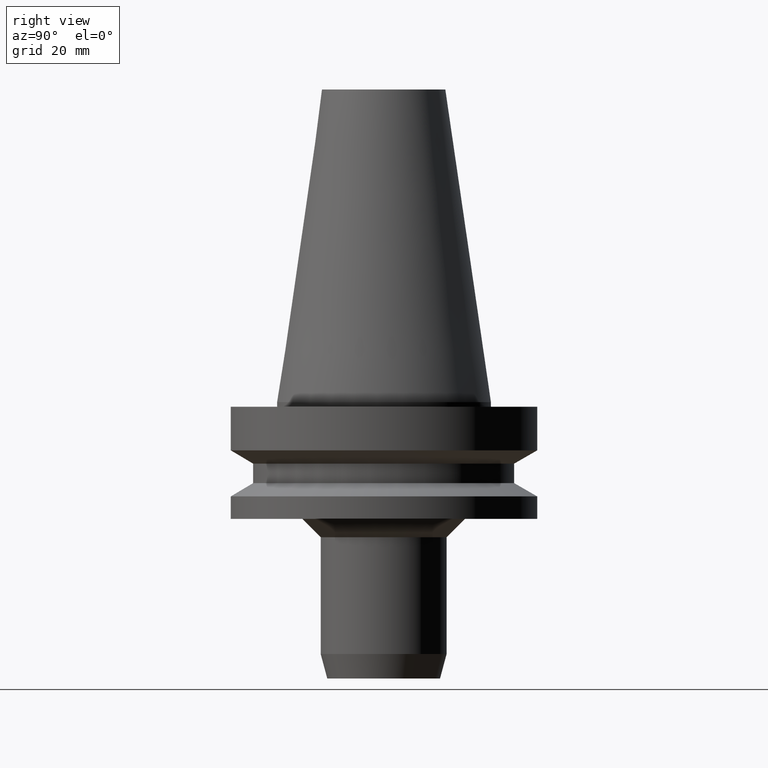
[diagram: clean part render]
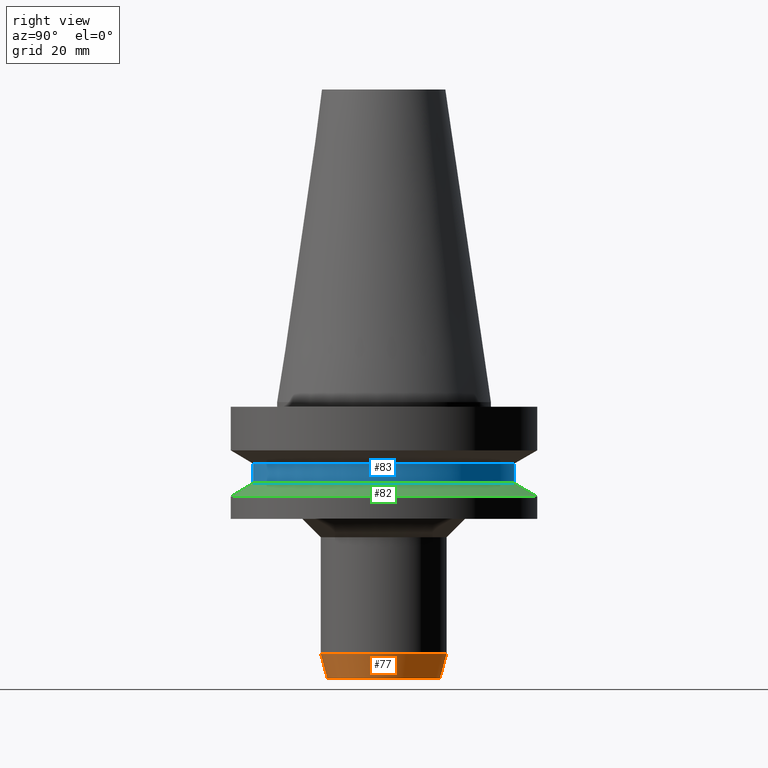
[diagram: same view with three faces highlighted in distinct colors, each labeled with its STEP entity id]
A machine part, right view with three faces highlighted in distinct colors.
Their STEP definitions:

[orange] entity #77 — the highlighted conical surface has half-angle 15 deg.
#77=ADVANCED_FACE('',(#94,#95),#96,.T.);
#94=FACE_BOUND('',#134,.T.);
#95=FACE_BOUND('',#135,.T.);
#96=CONICAL_SURFACE('',#136,19.4282032322792,0.261799387022768);
#134=EDGE_LOOP('',(#178));
#135=EDGE_LOOP('',(#179));
#136=AXIS2_PLACEMENT_3D('',#180,#181,#182);
#178=ORIENTED_EDGE('',*,*,#240,.F.);
#179=ORIENTED_EDGE('',*,*,#239,.T.);
#180=CARTESIAN_POINT('',(5.26598123603087E-015,1.05319624720617E-014,-85.9999999950557));
#181=DIRECTION('',(-6.12323399573677E-017,-1.22464679914735E-016,1.0));
#182=DIRECTION('',(-1.23259516440783E-032,1.0,1.22464679914735E-016));
#239=EDGE_CURVE('',#253,#253,#254,.T.);
#240=EDGE_CURVE('',#255,#255,#256,.T.);
#253=VERTEX_POINT('',#279);
#254=CIRCLE('',#280,18.3564064645584);
#255=VERTEX_POINT('',#281);
#256=CIRCLE('',#282,20.5);
#279=CARTESIAN_POINT('',(5.51091059616309E-015,18.3564064645584,-90.0));
#280=AXIS2_PLACEMENT_3D('',#306,#307,#308);
#281=CARTESIAN_POINT('',(5.02105187589864E-015,20.5,-81.9999999901114));
#282=AXIS2_PLACEMENT_3D('',#309,#310,#311);
#306=CARTESIAN_POINT('',(5.51091059616309E-015,1.10218211923262E-014,-90.0));
#307=DIRECTION('',(-6.12323399573677E-017,-1.22464679914735E-016,1.0));
#308=DIRECTION('',(-1.23259516440783E-032,1.0,1.22464679914735E-016));
#309=CARTESIAN_POINT('',(5.02105187589864E-015,1.00421037517973E-014,-81.9999999901114));
#310=DIRECTION('',(-6.12323399573677E-017,-1.22464679914735E-016,1.0));
#311=DIRECTION('',(-1.23259516440783E-032,1.0,1.22464679914735E-016));

[blue] entity #83 — the highlighted cylindrical surface (bore or boss wall) has radius 42.5 mm, axis along (0, 0, -1).
#83=ADVANCED_FACE('',(#112,#113),#114,.T.);
#112=FACE_BOUND('',#152,.T.);
#113=FACE_BOUND('',#153,.T.);
#114=CYLINDRICAL_SURFACE('',#154,42.5);
#152=EDGE_LOOP('',(#208));
#153=EDGE_LOOP('',(#209));
#154=AXIS2_PLACEMENT_3D('',#210,#211,#212);
#208=ORIENTED_EDGE('',*,*,#246,.F.);
#209=ORIENTED_EDGE('',*,*,#245,.T.);
#210=CARTESIAN_POINT('',(1.42059028701093E-015,2.84118057402186E-015,-23.2));
#211=DIRECTION('',(6.12323399573677E-017,1.22464679914735E-016,-1.0));
#212=DIRECTION('',(-1.23259516440783E-032,1.0,1.22464679914735E-016));
#245=EDGE_CURVE('',#265,#265,#266,.T.);
#246=EDGE_CURVE('',#267,#267,#268,.T.);
#265=VERTEX_POINT('',#291);
#266=CIRCLE('',#292,42.5);
#267=VERTEX_POINT('',#293);
#268=CIRCLE('',#294,42.5);
#291=CARTESIAN_POINT('',(1.61468902694396E-015,42.5,-26.36987298));
#292=AXIS2_PLACEMENT_3D('',#324,#325,#326);
#293=CARTESIAN_POINT('',(1.2264915470779E-015,42.5,-20.03012702));
#294=AXIS2_PLACEMENT_3D('',#327,#328,#329);
#324=CARTESIAN_POINT('',(1.61468902694396E-015,3.22937805388793E-015,-26.36987298));
#325=DIRECTION('',(-6.12323399573677E-017,-1.22464679914735E-016,1.0));
#326=DIRECTION('',(-1.23259516440783E-032,1.0,1.22464679914735E-016));
#327=CARTESIAN_POINT('',(1.2264915470779E-015,2.45298309415579E-015,-20.03012702));
#328=DIRECTION('',(-6.12323399573677E-017,-1.22464679914735E-016,1.0));
#329=DIRECTION('',(-1.23259516440783E-032,1.0,1.22464679914735E-016));

[green] entity #82 — the highlighted conical surface has half-angle 60 deg.
#82=ADVANCED_FACE('',(#109,#110),#111,.T.);
#109=FACE_BOUND('',#149,.T.);
#110=FACE_BOUND('',#150,.T.);
#111=CONICAL_SURFACE('',#151,46.25,1.04719755108882);
#149=EDGE_LOOP('',(#203));
#150=EDGE_LOOP('',(#204));
#151=AXIS2_PLACEMENT_3D('',#205,#206,#207);
#203=ORIENTED_EDGE('',*,*,#245,.F.);
#204=ORIENTED_EDGE('',*,*,#244,.T.);
#205=CARTESIAN_POINT('',(1.74726093181758E-015,3.49452186363515E-015,-28.53493649));
#206=DIRECTION('',(6.12323399573676E-017,1.22464679914735E-016,-1.0));
#207=DIRECTION('',(-1.23259516440783E-032,1.0,1.22464679914735E-016));
#244=EDGE_CURVE('',#263,#263,#264,.T.);
#245=EDGE_CURVE('',#265,#265,#266,.T.);
#263=VERTEX_POINT('',#289);
#264=CIRCLE('',#290,50.0);
#265=VERTEX_POINT('',#291);
#266=CIRCLE('',#292,42.5);
#289=CARTESIAN_POINT('',(1.87983283669119E-015,50.0,-30.7));
#290=AXIS2_PLACEMENT_3D('',#321,#322,#323);
#291=CARTESIAN_POINT('',(1.61468902694396E-015,42.5,-26.36987298));
#292=AXIS2_PLACEMENT_3D('',#324,#325,#326);
#321=CARTESIAN_POINT('',(1.87983283669119E-015,3.75966567338237E-015,-30.7));
#322=DIRECTION('',(-6.12323399573677E-017,-1.22464679914735E-016,1.0));
#323=DIRECTION('',(-1.23259516440783E-032,1.0,1.22464679914735E-016));
#324=CARTESIAN_POINT('',(1.61468902694396E-015,3.22937805388793E-015,-26.36987298));
#325=DIRECTION('',(-6.12323399573677E-017,-1.22464679914735E-016,1.0));
#326=DIRECTION('',(-1.23259516440783E-032,1.0,1.22464679914735E-016));